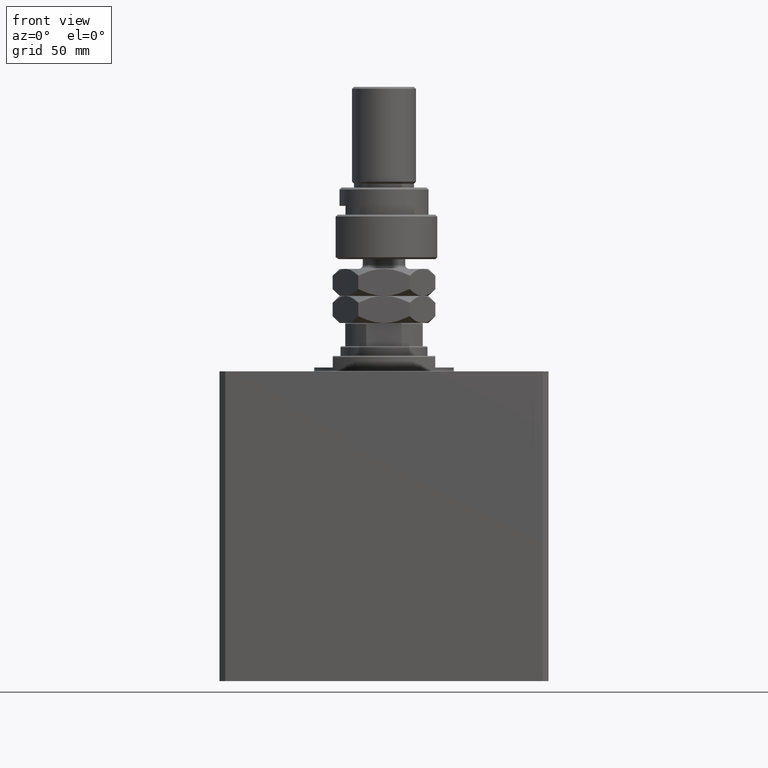
[diagram: clean part render]
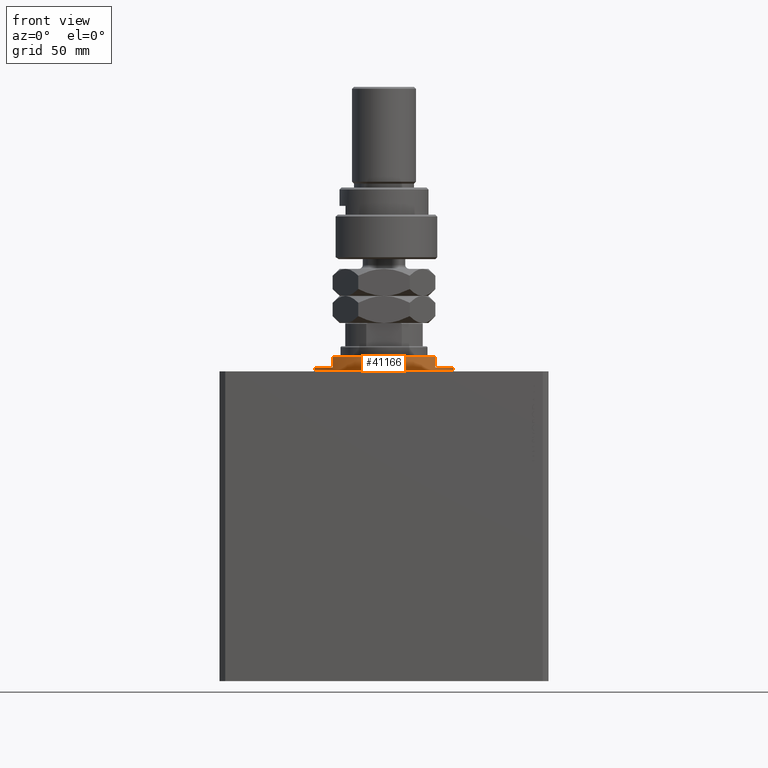
[diagram: same view with one face highlighted and labeled with its STEP entity id]
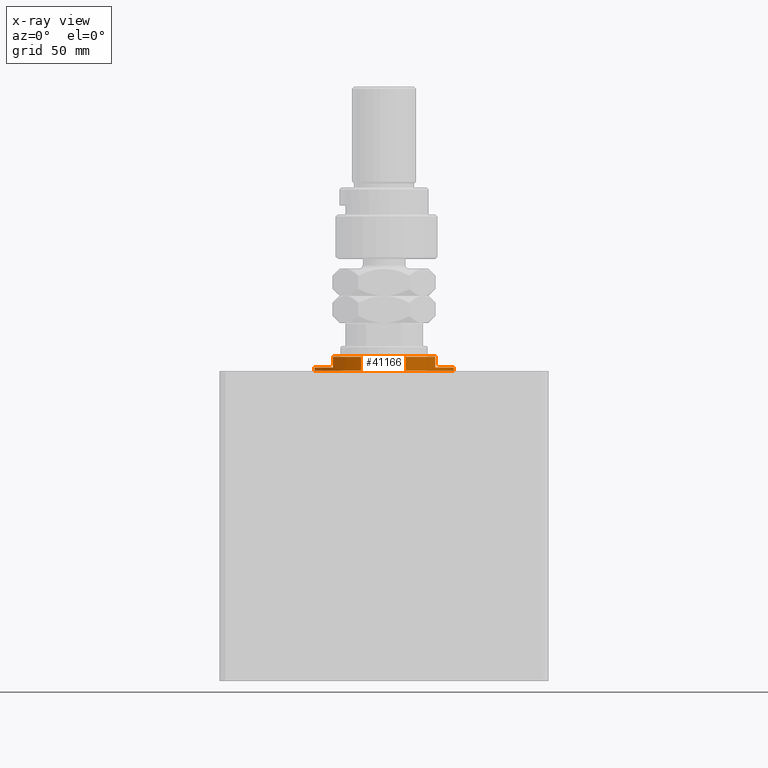
[diagram: x-ray of the same camera — body ghosted, the highlighted face saturated]
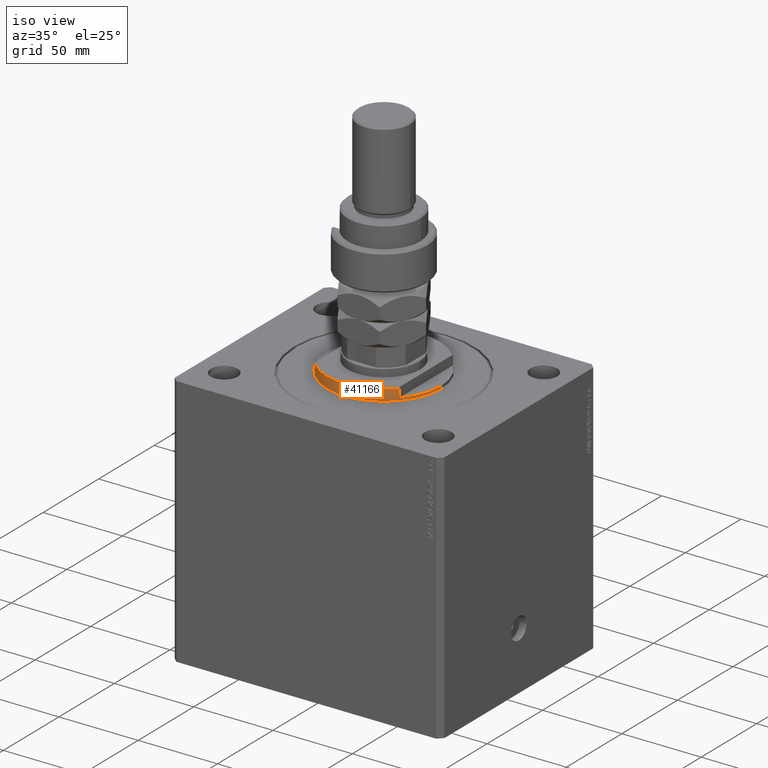
[diagram: same view with one face highlighted and labeled with its STEP entity id]
A machine part, front view. The second image highlights one B-rep face of the part: STEP entity #41166.
The next image is the same camera in x-ray: the body ghosted, the highlighted face saturated — about 0% of this face is hidden behind the body in this view.
A second angle (iso view) of the same face is appended — the face is thin or edge-on in the first view.
In plain terms, the highlighted cylindrical surface (partial cylindrical patch) has radius 36 mm, axis along (0, 0, -1).
Its self-contained STEP definition (entity closure, byte-faithful):
#111 = CARTESIAN_POINT ( 'NONE',  ( 36.00000000000000000, 0.000000000000000000, -2.000000000000000000 ) ) ;
#129 = DIRECTION ( 'NONE',  ( 0.000000000000000000, 0.000000000000000000, -1.000000000000000000 ) ) ;
#383 = ORIENTED_EDGE ( 'NONE', *, *, #39342, .F. ) ;
#583 = VECTOR ( 'NONE', #30022, 1000.000000000000000 ) ;
#2021 = VERTEX_POINT ( 'NONE', #17390 ) ;
#3020 = DIRECTION ( 'NONE',  ( -0.000000000000000000, -0.000000000000000000, 1.000000000000000000 ) ) ;
#3521 = EDGE_CURVE ( 'NONE', #2021, #45990, #33002, .T. ) ;
#4090 = LINE ( 'NONE', #29548, #583 ) ;
#4555 = VERTEX_POINT ( 'NONE', #11094 ) ;
#5213 = CARTESIAN_POINT ( 'NONE',  ( 36.00000000000000000, 0.000000000000000000, -8.000000000000000000 ) ) ;
#5962 = DIRECTION ( 'NONE',  ( 1.000000000000000000, 0.000000000000000000, 0.000000000000000000 ) ) ;
#6488 = ORIENTED_EDGE ( 'NONE', *, *, #27268, .T. ) ;
#6693 = CIRCLE ( 'NONE', #13626, 36.00000000000000000 ) ;
#8916 = CIRCLE ( 'NONE', #32695, 36.00000000000000000 ) ;
#10681 = LINE ( 'NONE', #29660, #39649 ) ;
#11094 = CARTESIAN_POINT ( 'NONE',  ( 36.00000000000000000, 0.000000000000000000, -0.5000000000000004441 ) ) ;
#11116 = DIRECTION ( 'NONE',  ( 0.000000000000000000, 0.000000000000000000, 1.000000000000000000 ) ) ;
#11141 = CARTESIAN_POINT ( 'NONE',  ( 26.50000000000000000, -24.36698586202240691, -8.000000000000000000 ) ) ;
#11404 = VERTEX_POINT ( 'NONE', #42396 ) ;
#12137 = VERTEX_POINT ( 'NONE', #27133 ) ;
#13626 = AXIS2_PLACEMENT_3D ( 'NONE', #21678, #11116, #22162 ) ;
#13653 = VERTEX_POINT ( 'NONE', #40882 ) ;
#13797 = EDGE_LOOP ( 'NONE', ( #383, #33972, #35700, #30168, #24217, #15830, #6488, #23916 ) ) ;
#13829 = CARTESIAN_POINT ( 'NONE',  ( 0.000000000000000000, 0.000000000000000000, -8.000000000000000000 ) ) ;
#14536 = CARTESIAN_POINT ( 'NONE',  ( 0.000000000000000000, 0.000000000000000000, -2.000000000000000000 ) ) ;
#14600 = CIRCLE ( 'NONE', #39891, 36.00000000000000000 ) ;
#15830 = ORIENTED_EDGE ( 'NONE', *, *, #30466, .F. ) ;
#17390 = CARTESIAN_POINT ( 'NONE',  ( 26.50000000000000000, -24.36698586202240691, -2.000000000000000000 ) ) ;
#17664 = DIRECTION ( 'NONE',  ( 1.000000000000000000, 0.000000000000000000, 0.000000000000000000 ) ) ;
#17972 = AXIS2_PLACEMENT_3D ( 'NONE', #14536, #129, #43841 ) ;
#19058 = CARTESIAN_POINT ( 'NONE',  ( -36.00000000000000000, 4.408728476930470856E-15, -2.000000000000000000 ) ) ;
#21390 = DIRECTION ( 'NONE',  ( 0.000000000000000000, 0.000000000000000000, -1.000000000000000000 ) ) ;
#21678 = CARTESIAN_POINT ( 'NONE',  ( 0.000000000000000000, 0.000000000000000000, -7.499999999999965361 ) ) ;
#21874 = VECTOR ( 'NONE', #35220, 1000.000000000000000 ) ;
#22162 = DIRECTION ( 'NONE',  ( -1.000000000000000000, 0.000000000000000000, 0.000000000000000000 ) ) ;
#23916 = ORIENTED_EDGE ( 'NONE', *, *, #46625, .T. ) ;
#24217 = ORIENTED_EDGE ( 'NONE', *, *, #3521, .F. ) ;
#24682 = CARTESIAN_POINT ( 'NONE',  ( 0.000000000000000000, 0.000000000000000000, -0.5000000000000004441 ) ) ;
#24964 = EDGE_CURVE ( 'NONE', #13653, #44245, #34820, .T. ) ;
#25303 = DIRECTION ( 'NONE',  ( 0.000000000000000000, 0.000000000000000000, -1.000000000000000000 ) ) ;
#25951 = AXIS2_PLACEMENT_3D ( 'NONE', #13829, #3020, #17664 ) ;
#27133 = CARTESIAN_POINT ( 'NONE',  ( -36.00000000000000000, 4.408728476930470856E-15, -0.5000000000000004441 ) ) ;
#27268 = EDGE_CURVE ( 'NONE', #44198, #4555, #38107, .T. ) ;
#29548 = CARTESIAN_POINT ( 'NONE',  ( -26.50000000000000000, -24.36698586202240691, -8.000000000000000000 ) ) ;
#29660 = CARTESIAN_POINT ( 'NONE',  ( -36.00000000000000000, 4.408728476930470856E-15, -8.000000000000000000 ) ) ;
#30022 = DIRECTION ( 'NONE',  ( 0.000000000000000000, 0.000000000000000000, -1.000000000000000000 ) ) ;
#30168 = ORIENTED_EDGE ( 'NONE', *, *, #39642, .T. ) ;
#30466 = EDGE_CURVE ( 'NONE', #44198, #2021, #8916, .T. ) ;
#32695 = AXIS2_PLACEMENT_3D ( 'NONE', #40844, #21390, #43489 ) ;
#33002 = LINE ( 'NONE', #11141, #35099 ) ;
#33972 = ORIENTED_EDGE ( 'NONE', *, *, #24964, .F. ) ;
#34252 = FACE_OUTER_BOUND ( 'NONE', #13797, .T. ) ;
#34820 = CIRCLE ( 'NONE', #17972, 36.00000000000000000 ) ;
#35099 = VECTOR ( 'NONE', #25303, 1000.000000000000000 ) ;
#35220 = DIRECTION ( 'NONE',  ( -0.000000000000000000, -0.000000000000000000, 1.000000000000000000 ) ) ;
#35700 = ORIENTED_EDGE ( 'NONE', *, *, #39982, .T. ) ;
#35911 = CYLINDRICAL_SURFACE ( 'NONE', #25951, 36.00000000000000000 ) ;
#38107 = LINE ( 'NONE', #5213, #21874 ) ;
#39342 = EDGE_CURVE ( 'NONE', #44245, #12137, #10681, .T. ) ;
#39642 = EDGE_CURVE ( 'NONE', #11404, #45990, #6693, .T. ) ;
#39649 = VECTOR ( 'NONE', #47202, 1000.000000000000000 ) ;
#39891 = AXIS2_PLACEMENT_3D ( 'NONE', #24682, #46315, #5962 ) ;
#39982 = EDGE_CURVE ( 'NONE', #13653, #11404, #4090, .T. ) ;
#40844 = CARTESIAN_POINT ( 'NONE',  ( 0.000000000000000000, 0.000000000000000000, -2.000000000000000000 ) ) ;
#40882 = CARTESIAN_POINT ( 'NONE',  ( -26.50000000000000000, -24.36698586202240691, -2.000000000000000000 ) ) ;
#41166 = ADVANCED_FACE ( 'NONE', ( #34252 ), #35911, .T. ) ;
#42396 = CARTESIAN_POINT ( 'NONE',  ( -26.50000000000000000, -24.36698586202241046, -7.499999999999968026 ) ) ;
#43489 = DIRECTION ( 'NONE',  ( -1.000000000000000000, 0.000000000000000000, 0.000000000000000000 ) ) ;
#43841 = DIRECTION ( 'NONE',  ( -1.000000000000000000, 0.000000000000000000, 0.000000000000000000 ) ) ;
#44198 = VERTEX_POINT ( 'NONE', #111 ) ;
#44245 = VERTEX_POINT ( 'NONE', #19058 ) ;
#44835 = CARTESIAN_POINT ( 'NONE',  ( 26.50000000000000000, -24.36698586202240691, -7.499999999999965361 ) ) ;
#45990 = VERTEX_POINT ( 'NONE', #44835 ) ;
#46315 = DIRECTION ( 'NONE',  ( -0.000000000000000000, -0.000000000000000000, -1.000000000000000000 ) ) ;
#46625 = EDGE_CURVE ( 'NONE', #4555, #12137, #14600, .T. ) ;
#47202 = DIRECTION ( 'NONE',  ( -0.000000000000000000, -0.000000000000000000, 1.000000000000000000 ) ) ;